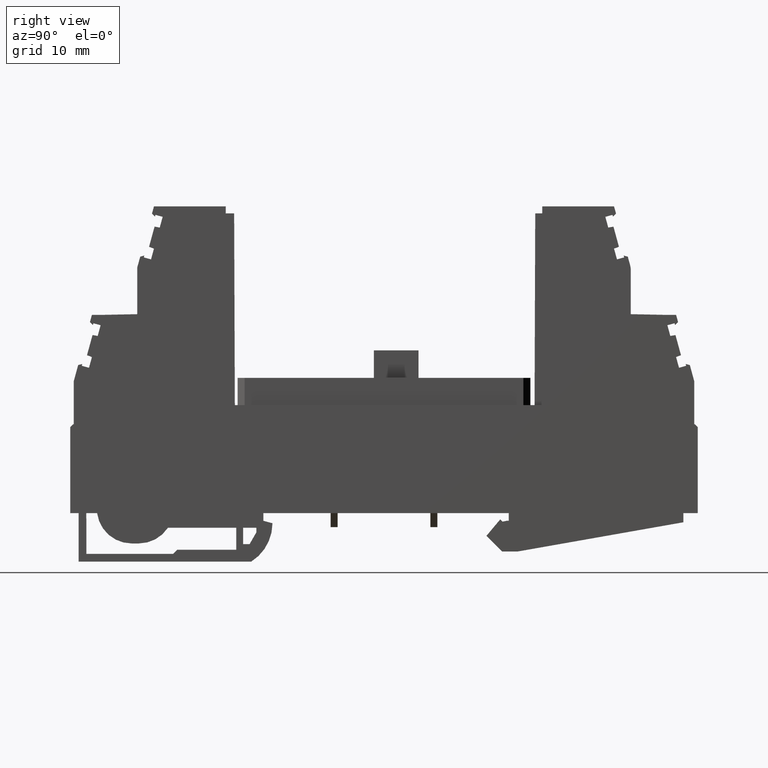
[diagram: clean part render]
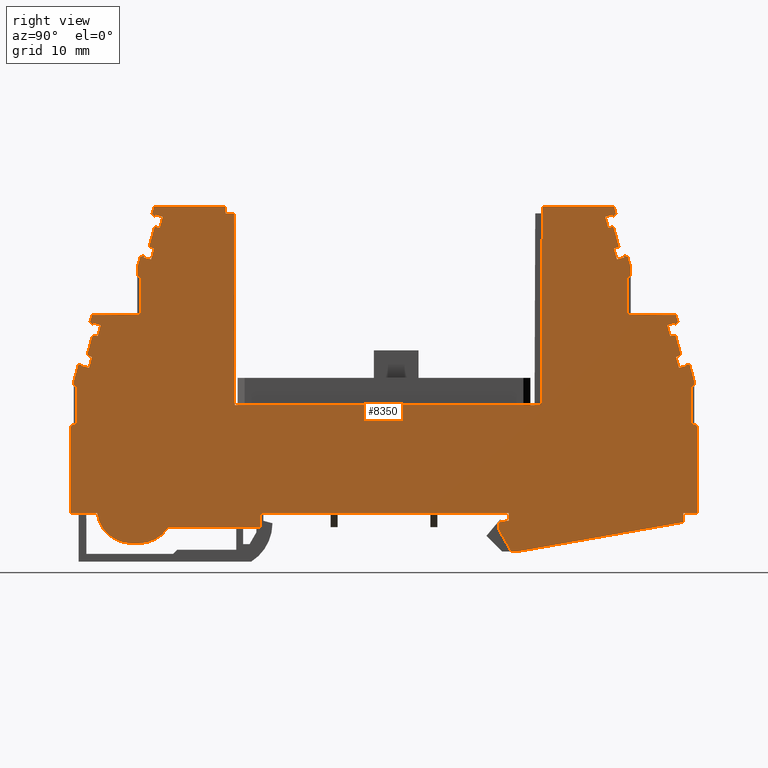
[diagram: same view with one face highlighted and labeled with its STEP entity id]
A machine part, right view. The second image highlights one B-rep face of the part: STEP entity #8350.
In plain terms, the highlighted planar face has unit normal (1, -0, 0).
Its self-contained STEP definition (entity closure, byte-faithful):
#10=CARTESIAN_POINT('',(27.1450273233744,19.4111263361234,-37.3));
#20=DIRECTION('',(0.,0.,1.));
#30=DIRECTION('',(1.,0.,0.));
#40=AXIS2_PLACEMENT_3D('',#10,#20,#30);
#50=PLANE('',#40);
#60=CARTESIAN_POINT('',(8.90000005327397,45.5062694963291,-37.3));
#70=DIRECTION('',(-1.,1.20996962818096E-16,0.));
#80=VECTOR('',#70,1.);
#90=LINE('',#60,#80);
#100=CARTESIAN_POINT('',(29.3413513802325,45.5062694963291,-37.3));
#110=VERTEX_POINT('',#100);
#120=CARTESIAN_POINT('',(27.4413525222674,45.5062694963291,-37.3));
#130=VERTEX_POINT('',#120);
#140=EDGE_CURVE('',#110,#130,#90,.T.);
#150=ORIENTED_EDGE('',*,*,#140,.T.);
#160=CARTESIAN_POINT('',(8.90000005327397,45.1025581276091,-37.3));
#170=DIRECTION('',(-0.999805030924262,-0.0197458891553457,0.));
#180=VECTOR('',#170,1.);
#190=LINE('',#160,#180);
#200=CARTESIAN_POINT('',(34.4047084436594,45.606269480562,-37.3));
#210=VERTEX_POINT('',#200);
#220=EDGE_CURVE('',#210,#110,#190,.T.);
#230=ORIENTED_EDGE('',*,*,#220,.T.);
#240=CARTESIAN_POINT('',(34.4047084436594,-19.6999999999998,-37.3));
#250=DIRECTION('',(-1.20996962449382E-16,-1.,0.));
#260=VECTOR('',#250,1.);
#270=LINE('',#240,#260);
#280=CARTESIAN_POINT('',(34.4047084436594,50.706269480562,-37.3));
#290=VERTEX_POINT('',#280);
#300=EDGE_CURVE('',#290,#210,#270,.T.);
#310=ORIENTED_EDGE('',*,*,#300,.T.);
#320=CARTESIAN_POINT('',(8.90000005327397,72.723846158986,-37.3));
#330=DIRECTION('',(0.756958310160381,-0.653463171631838,0.));
#340=VECTOR('',#330,1.);
#350=LINE('',#320,#340);
#360=CARTESIAN_POINT('',(33.9413513671893,51.106274052444,-37.3));
#370=VERTEX_POINT('',#360);
#380=EDGE_CURVE('',#370,#290,#350,.T.);
#390=ORIENTED_EDGE('',*,*,#380,.T.);
#400=CARTESIAN_POINT('',(33.9413513671894,-19.6999999999998,-37.3));
#410=DIRECTION('',(-1.20996962449382E-16,-1.,0.));
#420=VECTOR('',#410,1.);
#430=LINE('',#400,#420);
#440=CARTESIAN_POINT('',(33.9413513671894,52.2833516012792,-37.3));
#450=VERTEX_POINT('',#440);
#460=EDGE_CURVE('',#450,#370,#430,.T.);
#470=ORIENTED_EDGE('',*,*,#460,.T.);
#480=CARTESIAN_POINT('',(14.2489347517698,-19.6999999999998,-37.3));
#490=DIRECTION('',(-0.263873049965441,-0.964557418457779,0.));
#500=VECTOR('',#490,1.);
#510=LINE('',#480,#500);
#520=CARTESIAN_POINT('',(34.369941174828,53.8500120786842,-37.3));
#530=VERTEX_POINT('',#520);
#540=EDGE_CURVE('',#530,#450,#510,.T.);
#550=ORIENTED_EDGE('',*,*,#540,.T.);
#560=CARTESIAN_POINT('',(8.90000005327397,47.1680981110385,-37.3));
#570=DIRECTION('',(-0.967267752775637,-0.25375794458572,0.));
#580=VECTOR('',#570,1.);
#590=LINE('',#560,#580);
#600=CARTESIAN_POINT('',(34.9619006101164,54.0053097293563,-37.3));
#610=VERTEX_POINT('',#600);
#620=EDGE_CURVE('',#610,#530,#590,.T.);
#630=ORIENTED_EDGE('',*,*,#620,.T.);
#640=CARTESIAN_POINT('',(14.7984095577835,-19.6999999999998,-37.3));
#650=DIRECTION('',(0.263873049960418,0.964557418459154,0.));
#660=VECTOR('',#650,1.);
#670=LINE('',#640,#660);
#680=CARTESIAN_POINT('',(34.8900459676001,53.7426533932878,-37.3));
#690=VERTEX_POINT('',#680);
#700=EDGE_CURVE('',#690,#610,#670,.T.);
#710=ORIENTED_EDGE('',*,*,#700,.T.);
#720=CARTESIAN_POINT('',(8.90000005327397,60.852725383736,-37.3));
#730=DIRECTION('',(-0.964557418457773,0.263873049965463,0.));
#740=VECTOR('',#730,1.);
#750=LINE('',#720,#740);
#760=CARTESIAN_POINT('',(35.92212240535,53.4603092298248,-37.3));
#770=VERTEX_POINT('',#760);
#780=EDGE_CURVE('',#770,#690,#750,.T.);
#790=ORIENTED_EDGE('',*,*,#780,.T.);
#800=CARTESIAN_POINT('',(15.9077266177557,-19.6999999999998,-37.3));
#810=DIRECTION('',(-0.263873049965258,-0.96455741845783,0.));
#820=VECTOR('',#810,1.);
#830=LINE('',#800,#820);
#840=CARTESIAN_POINT('',(36.3434969255558,55.0005950584349,-37.3));
#850=VERTEX_POINT('',#840);
#860=EDGE_CURVE('',#850,#770,#830,.T.);
#870=ORIENTED_EDGE('',*,*,#860,.T.);
#880=CARTESIAN_POINT('',(8.90000005327397,65.1522528053902,-37.3));
#890=DIRECTION('',(0.937888934611864,-0.346935651573346,0.));
#900=VECTOR('',#890,1.);
#910=LINE('',#880,#900);
#920=CARTESIAN_POINT('',(35.6373932870742,55.2617907254851,-37.3));
#930=VERTEX_POINT('',#920);
#940=EDGE_CURVE('',#930,#850,#910,.T.);
#950=ORIENTED_EDGE('',*,*,#940,.T.);
#960=CARTESIAN_POINT('',(15.1301679305708,-19.6999999999998,-37.3));
#970=DIRECTION('',(-0.263873049965391,-0.964557418457793,0.));
#980=VECTOR('',#970,1.);
#990=LINE('',#960,#980);
#1000=CARTESIAN_POINT('',(36.4290124369704,58.1554629808585,-37.3));
#1010=VERTEX_POINT('',#1000);
#1020=EDGE_CURVE('',#1010,#930,#990,.T.);
#1030=ORIENTED_EDGE('',*,*,#1020,.T.);
#1040=CARTESIAN_POINT('',(8.90000005327397,63.1583324263755,-37.3));
#1050=DIRECTION('',(-0.983885037933486,0.178802215116658,0.));
#1060=VECTOR('',#1050,1.);
#1070=LINE('',#1040,#1060);
#1080=CARTESIAN_POINT('',(37.1697449261754,58.0208490729603,-37.3));
#1090=VERTEX_POINT('',#1080);
#1100=EDGE_CURVE('',#1090,#1010,#1070,.T.);
#1110=ORIENTED_EDGE('',*,*,#1100,.T.);
#1120=CARTESIAN_POINT('',(15.9077266177532,-19.6999999999998,-37.3));
#1130=DIRECTION('',(-0.263873049965295,-0.964557418457819,0.));
#1140=VECTOR('',#1130,1.);
#1150=LINE('',#1120,#1140);
#1160=CARTESIAN_POINT('',(37.591119446381,59.5611349015705,-37.3));
#1170=VERTEX_POINT('',#1160);
#1180=EDGE_CURVE('',#1170,#1090,#1150,.T.);
#1190=ORIENTED_EDGE('',*,*,#1180,.T.);
#1200=CARTESIAN_POINT('',(8.90000005327397,67.4101369788993,-37.3));
#1210=DIRECTION('',(0.964557418457813,-0.26387304996532,0.));
#1220=VECTOR('',#1210,1.);
#1230=LINE('',#1200,#1220);
#1240=CARTESIAN_POINT('',(36.5590430086313,59.8434790650334,-37.3));
#1250=VERTEX_POINT('',#1240);
#1260=EDGE_CURVE('',#1250,#1170,#1230,.T.);
#1270=ORIENTED_EDGE('',*,*,#1260,.T.);
#1280=CARTESIAN_POINT('',(14.7984095569449,-19.6999999999998,-37.3));
#1290=DIRECTION('',(0.263873049970261,0.964557418456461,0.));
#1300=VECTOR('',#1290,1.);
#1310=LINE('',#1280,#1300);
#1320=CARTESIAN_POINT('',(36.4871883661123,59.5808227289657,-37.3));
#1330=VERTEX_POINT('',#1320);
#1340=EDGE_CURVE('',#1330,#1250,#1310,.T.);
#1350=ORIENTED_EDGE('',*,*,#1340,.T.);
#1360=CARTESIAN_POINT('',(114.942101167503,-19.6999999999998,-37.3));
#1370=DIRECTION('',(0.703394702810296,-0.710799473873198,0.));
#1380=VECTOR('',#1370,1.);
#1390=LINE('',#1360,#1380);
#1400=CARTESIAN_POINT('',(36.0567169378386,60.0158258125999,-37.3));
#1410=VERTEX_POINT('',#1400);
#1420=EDGE_CURVE('',#1410,#1330,#1390,.T.);
#1430=ORIENTED_EDGE('',*,*,#1420,.T.);
#1440=CARTESIAN_POINT('',(14.2489347517765,-19.6999999999998,-37.3));
#1450=DIRECTION('',(-0.26387304996536,-0.964557418457802,0.));
#1460=VECTOR('',#1450,1.);
#1470=LINE('',#1440,#1460);
#1480=CARTESIAN_POINT('',(36.3413513671893,61.056274052444,-37.3));
#1490=VERTEX_POINT('',#1480);
#1500=EDGE_CURVE('',#1490,#1410,#1470,.T.);
#1510=ORIENTED_EDGE('',*,*,#1500,.T.);
#1520=CARTESIAN_POINT('',(8.90000005327397,61.056274052444,-37.3));
#1530=DIRECTION('',(-1.,1.20996962449382E-16,0.));
#1540=VECTOR('',#1530,1.);
#1550=LINE('',#1520,#1540);
#1560=CARTESIAN_POINT('',(46.6418672217727,61.056274052444,-37.3));
#1570=VERTEX_POINT('',#1560);
#1580=EDGE_CURVE('',#1570,#1490,#1550,.T.);
#1590=ORIENTED_EDGE('',*,*,#1580,.T.);
#1600=CARTESIAN_POINT('',(46.923760941475,-19.6999999999998,-37.3));
#1610=DIRECTION('',(-0.00349065141522361,0.99999390765779,0.));
#1620=VECTOR('',#1610,1.);
#1630=LINE('',#1600,#1620);
#1640=CARTESIAN_POINT('',(46.6453578944543,60.056274052444,-37.3));
#1650=VERTEX_POINT('',#1640);
#1660=EDGE_CURVE('',#1650,#1570,#1630,.T.);
#1670=ORIENTED_EDGE('',*,*,#1660,.T.);
#1680=CARTESIAN_POINT('',(8.90000005327397,60.056274052444,-37.3));
#1690=DIRECTION('',(-1.,1.20996962449382E-16,0.));
#1700=VECTOR('',#1690,1.);
#1710=LINE('',#1680,#1700);
#1720=CARTESIAN_POINT('',(47.8453578938458,60.056274052444,-37.3));
#1730=VERTEX_POINT('',#1720);
#1740=EDGE_CURVE('',#1730,#1650,#1710,.T.);
#1750=ORIENTED_EDGE('',*,*,#1740,.T.);
#1760=CARTESIAN_POINT('',(48.1237609408666,-19.6999999999998,-37.3));
#1770=DIRECTION('',(-0.00349065141522361,0.99999390765779,0.));
#1780=VECTOR('',#1770,1.);
#1790=LINE('',#1760,#1780);
#1800=CARTESIAN_POINT('',(47.9413513925897,32.556274052444,-37.3));
#1810=VERTEX_POINT('',#1800);
#1820=EDGE_CURVE('',#1810,#1730,#1790,.T.);
#1830=ORIENTED_EDGE('',*,*,#1820,.T.);
#1840=CARTESIAN_POINT('',(8.90000005327397,32.556274052444,-37.3));
#1850=DIRECTION('',(-1.,1.20996962449382E-16,0.));
#1860=VECTOR('',#1850,1.);
#1870=LINE('',#1840,#1860);
#1880=CARTESIAN_POINT('',(91.9413513701809,32.556274052444,-37.3));
#1890=VERTEX_POINT('',#1880);
#1900=EDGE_CURVE('',#1890,#1810,#1870,.T.);
#1910=ORIENTED_EDGE('',*,*,#1900,.T.);
#1920=CARTESIAN_POINT('',(91.758941821904,-19.6999999999998,-37.3));
#1930=DIRECTION('',(-0.00349065141522385,-0.99999390765779,0.));
#1940=VECTOR('',#1930,1.);
#1950=LINE('',#1920,#1940);
#1960=CARTESIAN_POINT('',(92.0408355416064,61.056274052444,-37.3));
#1970=VERTEX_POINT('',#1960);
#1980=EDGE_CURVE('',#1970,#1890,#1950,.T.);
#1990=ORIENTED_EDGE('',*,*,#1980,.T.);
#2000=CARTESIAN_POINT('',(8.90000005327397,61.056274052444,-37.3));
#2010=DIRECTION('',(-1.,1.20996962449382E-16,0.));
#2020=VECTOR('',#2010,1.);
#2030=LINE('',#2000,#2020);
#2040=CARTESIAN_POINT('',(102.341351367189,61.056274052444,-37.3));
#2050=VERTEX_POINT('',#2040);
#2060=EDGE_CURVE('',#2050,#1970,#2030,.T.);
#2070=ORIENTED_EDGE('',*,*,#2060,.T.);
#2080=CARTESIAN_POINT('',(124.433767982602,-19.6999999999998,-37.3));
#2090=DIRECTION('',(-0.26387304996536,0.964557418457802,0.));
#2100=VECTOR('',#2090,1.);
#2110=LINE('',#2080,#2100);
#2120=CARTESIAN_POINT('',(102.62598579654,60.0158258125998,-37.3));
#2130=VERTEX_POINT('',#2120);
#2140=EDGE_CURVE('',#2130,#2050,#2110,.T.);
#2150=ORIENTED_EDGE('',*,*,#2140,.T.);
#2160=CARTESIAN_POINT('',(23.7406015668753,-19.6999999999998,-37.3));
#2170=DIRECTION('',(0.703394702810296,0.710799473873198,0.));
#2180=VECTOR('',#2170,1.);
#2190=LINE('',#2160,#2180);
#2200=CARTESIAN_POINT('',(102.195514368266,59.5808227289656,-37.3));
#2210=VERTEX_POINT('',#2200);
#2220=EDGE_CURVE('',#2210,#2130,#2190,.T.);
#2230=ORIENTED_EDGE('',*,*,#2220,.T.);
#2240=CARTESIAN_POINT('',(123.884293177434,-19.6999999999998,-37.3));
#2250=DIRECTION('',(0.26387304997026,-0.964557418456461,0.));
#2260=VECTOR('',#2250,1.);
#2270=LINE('',#2240,#2260);
#2280=CARTESIAN_POINT('',(102.123659725747,59.8434790650333,-37.3));
#2290=VERTEX_POINT('',#2280);
#2300=EDGE_CURVE('',#2290,#2210,#2270,.T.);
#2310=ORIENTED_EDGE('',*,*,#2300,.T.);
#2320=CARTESIAN_POINT('',(8.90000005327397,34.3403716958161,-37.3));
#2330=DIRECTION('',(0.964557418457813,0.26387304996532,0.));
#2340=VECTOR('',#2330,1.);
#2350=LINE('',#2320,#2340);
#2360=CARTESIAN_POINT('',(101.091583287998,59.5611349015705,-37.3));
#2370=VERTEX_POINT('',#2360);
#2380=EDGE_CURVE('',#2370,#2290,#2350,.T.);
#2390=ORIENTED_EDGE('',*,*,#2380,.T.);
#2400=CARTESIAN_POINT('',(122.774976116626,-19.6999999999998,-37.3));
#2410=DIRECTION('',(-0.263873049965295,0.964557418457819,0.));
#2420=VECTOR('',#2410,1.);
#2430=LINE('',#2400,#2420);
#2440=CARTESIAN_POINT('',(101.512957808204,58.0208490729604,-37.3));
#2450=VERTEX_POINT('',#2440);
#2460=EDGE_CURVE('',#2450,#2370,#2430,.T.);
#2470=ORIENTED_EDGE('',*,*,#2460,.T.);
#2480=CARTESIAN_POINT('',(8.90000005327397,41.1902221636747,-37.3));
#2490=DIRECTION('',(-0.983885037933486,-0.178802215116658,0.));
#2500=VECTOR('',#2490,1.);
#2510=LINE('',#2480,#2500);
#2520=CARTESIAN_POINT('',(102.253690297408,58.1554629808584,-37.3));
#2530=VERTEX_POINT('',#2520);
#2540=EDGE_CURVE('',#2530,#2450,#2510,.T.);
#2550=ORIENTED_EDGE('',*,*,#2540,.T.);
#2560=CARTESIAN_POINT('',(123.552534803808,-19.6999999999998,-37.3));
#2570=DIRECTION('',(-0.263873049965391,0.964557418457793,0.));
#2580=VECTOR('',#2570,1.);
#2590=LINE('',#2560,#2580);
#2600=CARTESIAN_POINT('',(103.045309447305,55.2617907254851,-37.3));
#2610=VERTEX_POINT('',#2600);
#2620=EDGE_CURVE('',#2610,#2530,#2590,.T.);
#2630=ORIENTED_EDGE('',*,*,#2620,.T.);
#2640=CARTESIAN_POINT('',(8.90000005327397,20.4363833112167,-37.3));
#2650=DIRECTION('',(0.937888934611864,0.346935651573346,0.));
#2660=VECTOR('',#2650,1.);
#2670=LINE('',#2640,#2660);
#2680=CARTESIAN_POINT('',(102.339205808823,55.0005950584348,-37.3));
#2690=VERTEX_POINT('',#2680);
#2700=EDGE_CURVE('',#2690,#2610,#2670,.T.);
#2710=ORIENTED_EDGE('',*,*,#2700,.T.);
#2720=CARTESIAN_POINT('',(122.774976116623,-19.6999999999998,-37.3));
#2730=DIRECTION('',(-0.263873049965258,0.96455741845783,0.));
#2740=VECTOR('',#2730,1.);
#2750=LINE('',#2720,#2740);
#2760=CARTESIAN_POINT('',(102.760580329029,53.4603092298247,-37.3));
#2770=VERTEX_POINT('',#2760);
#2780=EDGE_CURVE('',#2770,#2690,#2750,.T.);
#2790=ORIENTED_EDGE('',*,*,#2780,.T.);
#2800=CARTESIAN_POINT('',(8.90000005327397,27.7829601006336,-37.3));
#2810=DIRECTION('',(-0.964557418457773,-0.263873049965463,0.));
#2820=VECTOR('',#2810,1.);
#2830=LINE('',#2800,#2820);
#2840=CARTESIAN_POINT('',(103.792656766779,53.7426533932878,-37.3));
#2850=VERTEX_POINT('',#2840);
#2860=EDGE_CURVE('',#2850,#2770,#2830,.T.);
#2870=ORIENTED_EDGE('',*,*,#2860,.T.);
#2880=CARTESIAN_POINT('',(123.884293176595,-19.6999999999998,-37.3));
#2890=DIRECTION('',(0.263873049960418,-0.964557418459154,0.));
#2900=VECTOR('',#2890,1.);
#2910=LINE('',#2880,#2900);
#2920=CARTESIAN_POINT('',(103.720802124262,54.0053097293563,-37.3));
#2930=VERTEX_POINT('',#2920);
#2940=EDGE_CURVE('',#2930,#2850,#2910,.T.);
#2950=ORIENTED_EDGE('',*,*,#2940,.T.);
#2960=CARTESIAN_POINT('',(8.90000005327397,78.8810814776209,-37.3));
#2970=DIRECTION('',(-0.967267752775637,0.25375794458572,0.));
#2980=VECTOR('',#2970,1.);
#2990=LINE('',#2960,#2980);
#3000=CARTESIAN_POINT('',(104.312761559551,53.8500120786844,-37.3));
#3010=VERTEX_POINT('',#3000);
#3020=EDGE_CURVE('',#3010,#2930,#2990,.T.);
#3030=ORIENTED_EDGE('',*,*,#3020,.T.);
#3040=CARTESIAN_POINT('',(124.433767982609,-19.6999999999998,-37.3));
#3050=DIRECTION('',(-0.263873049965441,0.964557418457779,0.));
#3060=VECTOR('',#3050,1.);
#3070=LINE('',#3040,#3060);
#3080=CARTESIAN_POINT('',(104.635023622563,52.6720203754523,-37.3));
#3090=VERTEX_POINT('',#3080);
#3100=EDGE_CURVE('',#3090,#3010,#3070,.T.);
#3110=ORIENTED_EDGE('',*,*,#3100,.T.);
#3120=CARTESIAN_POINT('',(101.741351367189,51.880401225556,-37.3));
#3130=DIRECTION('',(8.99708997865547E-21,-2.60974393670053E-32,1.));
#3140=DIRECTION('',(1.,-1.20996962449382E-16,-8.99708997865547E-21));
#3150=AXIS2_PLACEMENT_3D('',#3120,#3130,#3140);
#3160=CIRCLE('',#3150,3.);
#3170=CARTESIAN_POINT('',(104.741351367189,51.880401225556,-37.3));
#3180=VERTEX_POINT('',#3170);
#3190=EDGE_CURVE('',#3180,#3090,#3160,.T.);
#3200=ORIENTED_EDGE('',*,*,#3190,.T.);
#3210=CARTESIAN_POINT('',(104.741351367189,-19.6999999999998,-37.3));
#3220=DIRECTION('',(1.20996962449382E-16,1.,0.));
#3230=VECTOR('',#3220,1.);
#3240=LINE('',#3210,#3230);
#3250=CARTESIAN_POINT('',(104.741351367189,51.1062694943388,-37.3));
#3260=VERTEX_POINT('',#3250);
#3270=EDGE_CURVE('',#3260,#3180,#3240,.T.);
#3280=ORIENTED_EDGE('',*,*,#3270,.T.);
#3290=CARTESIAN_POINT('',(8.90000005327397,-31.6302280177433,-37.3));
#3300=DIRECTION('',(0.756961995471646,0.65345890261866,0.));
#3310=VECTOR('',#3300,1.);
#3320=LINE('',#3290,#3310);
#3330=CARTESIAN_POINT('',(104.730509466521,51.0969100594458,-37.3));
#3340=VERTEX_POINT('',#3330);
#3350=EDGE_CURVE('',#3340,#3260,#3320,.T.);
#3360=ORIENTED_EDGE('',*,*,#3350,.T.);
#3370=CARTESIAN_POINT('',(129.782702681105,51.0969100594458,-37.3));
#3380=DIRECTION('',(-1.,-2.46519032881566E-32,1.79941799573109E-20));
#3390=VECTOR('',#3380,1.);
#3400=LINE('',#3370,#3390);
#3410=CARTESIAN_POINT('',(104.741351367189,51.0969100594458,-37.3));
#3420=VERTEX_POINT('',#3410);
#3430=EDGE_CURVE('',#3420,#3340,#3400,.T.);
#3440=ORIENTED_EDGE('',*,*,#3430,.T.);
#3450=CARTESIAN_POINT('',(129.782702681105,72.7144821659879,-37.3));
#3460=DIRECTION('',(0.756958310160381,0.653463171631838,
-8.32735372689133E-17));
#3470=VECTOR('',#3460,1.);
#3480=LINE('',#3450,#3470);
#3490=CARTESIAN_POINT('',(104.277994290719,50.6969054875638,-37.3));
#3500=VERTEX_POINT('',#3490);
#3510=EDGE_CURVE('',#3500,#3420,#3480,.T.);
#3520=ORIENTED_EDGE('',*,*,#3510,.T.);
#3530=CARTESIAN_POINT('',(104.277994290719,-19.709363992998,-37.3));
#3540=DIRECTION('',(-2.46519032881566E-32,1.,1.44553607884872E-33));
#3550=VECTOR('',#3540,1.);
#3560=LINE('',#3530,#3550);
#3570=CARTESIAN_POINT('',(104.277994290719,45.6062694805044,-37.3));
#3580=VERTEX_POINT('',#3570);
#3590=EDGE_CURVE('',#3580,#3500,#3560,.T.);
#3600=ORIENTED_EDGE('',*,*,#3590,.T.);
#3610=CARTESIAN_POINT('',(8.90000005327397,47.4899600439844,-37.3));
#3620=DIRECTION('',(-0.999805030924262,0.019745889155346,0.));
#3630=VECTOR('',#3620,1.);
#3640=LINE('',#3610,#3630);
#3650=CARTESIAN_POINT('',(109.341351750402,45.5062694884456,-37.3));
#3660=VERTEX_POINT('',#3650);
#3670=EDGE_CURVE('',#3660,#3580,#3640,.T.);
#3680=ORIENTED_EDGE('',*,*,#3670,.T.);
#3690=CARTESIAN_POINT('',(8.90000005327397,45.5062694884456,-37.3));
#3700=DIRECTION('',(-1.,1.18859577327523E-16,0.));
#3710=VECTOR('',#3700,1.);
#3720=LINE('',#3690,#3710);
#3730=CARTESIAN_POINT('',(111.241350152269,45.5062694884457,-37.3));
#3740=VERTEX_POINT('',#3730);
#3750=EDGE_CURVE('',#3740,#3660,#3720,.T.);
#3760=ORIENTED_EDGE('',*,*,#3750,.T.);
#3770=CARTESIAN_POINT('',(129.079963349151,-19.6999999999998,-37.3));
#3780=DIRECTION('',(-0.263875753589783,0.964556678825783,0.));
#3790=VECTOR('',#3780,1.);
#3800=LINE('',#3770,#3790);
#3810=CARTESIAN_POINT('',(111.525986322298,44.4658263438923,-37.3));
#3820=VERTEX_POINT('',#3810);
#3830=EDGE_CURVE('',#3820,#3740,#3800,.T.);
#3840=ORIENTED_EDGE('',*,*,#3830,.T.);
#3850=CARTESIAN_POINT('',(48.0286090580729,-19.6999999999998,-37.3));
#3860=DIRECTION('',(0.703394702810296,0.710799473873198,0.));
#3870=VECTOR('',#3860,1.);
#3880=LINE('',#3850,#3870);
#3890=CARTESIAN_POINT('',(111.095514368266,44.0308227289657,-37.3));
#3900=VERTEX_POINT('',#3890);
#3910=EDGE_CURVE('',#3900,#3820,#3880,.T.);
#3920=ORIENTED_EDGE('',*,*,#3910,.T.);
#3930=CARTESIAN_POINT('',(128.53029455742,-19.6999999999998,-37.3));
#3940=DIRECTION('',(0.26387304997026,-0.964557418456461,0.));
#3950=VECTOR('',#3940,1.);
#3960=LINE('',#3930,#3950);
#3970=CARTESIAN_POINT('',(111.023659725747,44.2934790650334,-37.3));
#3980=VERTEX_POINT('',#3970);
#3990=EDGE_CURVE('',#3980,#3900,#3960,.T.);
#4000=ORIENTED_EDGE('',*,*,#3990,.T.);
#4010=CARTESIAN_POINT('',(8.90000005327397,16.3556072123847,-37.3));
#4020=DIRECTION('',(0.964557418457813,0.26387304996532,0.));
#4030=VECTOR('',#4020,1.);
#4040=LINE('',#4010,#4030);
#4050=CARTESIAN_POINT('',(109.991583287998,44.0111349015705,-37.3));
#4060=VERTEX_POINT('',#4050);
#4070=EDGE_CURVE('',#4060,#3980,#4040,.T.);
#4080=ORIENTED_EDGE('',*,*,#4070,.T.);
#4090=CARTESIAN_POINT('',(127.420977496698,-19.6999999999998,-37.3));
#4100=DIRECTION('',(-0.263873049965295,0.964557418457819,0.));
#4110=VECTOR('',#4100,1.);
#4120=LINE('',#4090,#4110);
#4130=CARTESIAN_POINT('',(110.412957808204,42.4708490729604,-37.3));
#4140=VERTEX_POINT('',#4130);
#4150=EDGE_CURVE('',#4140,#4060,#4120,.T.);
#4160=ORIENTED_EDGE('',*,*,#4150,.T.);
#4170=CARTESIAN_POINT('',(8.90000005327397,24.022818043087,-37.3));
#4180=DIRECTION('',(-0.983885037933486,-0.178802215116658,0.));
#4190=VECTOR('',#4180,1.);
#4200=LINE('',#4170,#4190);
#4210=CARTESIAN_POINT('',(111.153690297408,42.6054629808585,-37.3));
#4220=VERTEX_POINT('',#4210);
#4230=EDGE_CURVE('',#4220,#4140,#4200,.T.);
#4240=ORIENTED_EDGE('',*,*,#4230,.T.);
#4250=CARTESIAN_POINT('',(128.198536183879,-19.6999999999998,-37.3));
#4260=DIRECTION('',(-0.263873049965391,0.964557418457793,0.));
#4270=VECTOR('',#4260,1.);
#4280=LINE('',#4250,#4270);
#4290=CARTESIAN_POINT('',(111.945309447305,39.7117907254848,-37.3));
#4300=VERTEX_POINT('',#4290);
#4310=EDGE_CURVE('',#4300,#4220,#4280,.T.);
#4320=ORIENTED_EDGE('',*,*,#4310,.T.);
#4330=CARTESIAN_POINT('',(8.90000005327397,1.59417334364645,-37.3));
#4340=DIRECTION('',(0.937888934611864,0.346935651573346,0.));
#4350=VECTOR('',#4340,1.);
#4360=LINE('',#4330,#4350);
#4370=CARTESIAN_POINT('',(111.239205808823,39.4505950584346,-37.3));
#4380=VERTEX_POINT('',#4370);
#4390=EDGE_CURVE('',#4380,#4300,#4360,.T.);
#4400=ORIENTED_EDGE('',*,*,#4390,.T.);
#4410=CARTESIAN_POINT('',(127.420977496696,-19.6999999999998,-37.3));
#4420=DIRECTION('',(-0.263873049965258,0.96455741845783,0.));
#4430=VECTOR('',#4420,1.);
#4440=LINE('',#4410,#4430);
#4450=CARTESIAN_POINT('',(111.660580329029,37.9103092298248,-37.3));
#4460=VERTEX_POINT('',#4450);
#4470=EDGE_CURVE('',#4460,#4380,#4440,.T.);
#4480=ORIENTED_EDGE('',*,*,#4470,.T.);
#4490=CARTESIAN_POINT('',(8.90000005327397,9.79819561720079,-37.3));
#4500=DIRECTION('',(-0.964557418457773,-0.263873049965463,0.));
#4510=VECTOR('',#4500,1.);
#4520=LINE('',#4490,#4510);
#4530=CARTESIAN_POINT('',(112.692656766779,38.1926533932878,-37.3));
#4540=VERTEX_POINT('',#4530);
#4550=EDGE_CURVE('',#4540,#4460,#4520,.T.);
#4560=ORIENTED_EDGE('',*,*,#4550,.T.);
#4570=CARTESIAN_POINT('',(128.530294556752,-19.6999999999998,-37.3));
#4580=DIRECTION('',(0.263873049960418,-0.964557418459154,0.));
#4590=VECTOR('',#4580,1.);
#4600=LINE('',#4570,#4590);
#4610=CARTESIAN_POINT('',(112.620802124262,38.4553097293565,-37.3));
#4620=VERTEX_POINT('',#4610);
#4630=EDGE_CURVE('',#4620,#4540,#4600,.T.);
#4640=ORIENTED_EDGE('',*,*,#4630,.T.);
#4650=CARTESIAN_POINT('',(8.90000005327397,65.6659527687728,-37.3));
#4660=DIRECTION('',(-0.967267752775637,0.25375794458572,0.));
#4670=VECTOR('',#4660,1.);
#4680=LINE('',#4650,#4670);
#4690=CARTESIAN_POINT('',(113.212761559551,38.3000120786844,-37.3));
#4700=VERTEX_POINT('',#4690);
#4710=EDGE_CURVE('',#4700,#4620,#4680,.T.);
#4720=ORIENTED_EDGE('',*,*,#4710,.T.);
#4730=CARTESIAN_POINT('',(129.079769362679,-19.6999999999998,-37.3));
#4740=DIRECTION('',(-0.263873049965441,0.964557418457779,0.));
#4750=VECTOR('',#4740,1.);
#4760=LINE('',#4730,#4750);
#4770=CARTESIAN_POINT('',(113.841351367189,36.0022747303483,-37.3));
#4780=VERTEX_POINT('',#4770);
#4790=EDGE_CURVE('',#4780,#4700,#4760,.T.);
#4800=ORIENTED_EDGE('',*,*,#4790,.T.);
#4810=CARTESIAN_POINT('',(113.841351367189,-19.6999999999998,-37.3));
#4820=DIRECTION('',(1.20996962449382E-16,1.,0.));
#4830=VECTOR('',#4820,1.);
#4840=LINE('',#4810,#4830);
#4850=CARTESIAN_POINT('',(113.84135135123,35.406274068403,-37.3));
#4860=VERTEX_POINT('',#4850);
#4870=EDGE_CURVE('',#4860,#4780,#4840,.T.);
#4880=ORIENTED_EDGE('',*,*,#4870,.T.);
#4890=CARTESIAN_POINT('',(129.782702649187,51.3476253663592,-37.3));
#4900=DIRECTION('',(0.707106781186552,0.707106781186543,
-5.55175131345927E-17));
#4910=VECTOR('',#4900,1.);
#4920=LINE('',#4890,#4910);
#4930=CARTESIAN_POINT('',(113.441351351231,35.0062740684038,-37.3));
#4940=VERTEX_POINT('',#4930);
#4950=EDGE_CURVE('',#4940,#4860,#4920,.T.);
#4960=ORIENTED_EDGE('',*,*,#4950,.T.);
#4970=CARTESIAN_POINT('',(113.441351351231,-19.6999999999998,-37.3));
#4980=DIRECTION('',(-2.46519032881566E-32,1.,1.44553607884872E-33));
#4990=VECTOR('',#4980,1.);
#5000=LINE('',#4970,#4990);
#5010=CARTESIAN_POINT('',(113.441351351231,29.806274052444,-37.3));
#5020=VERTEX_POINT('',#5010);
#5030=EDGE_CURVE('',#5020,#4940,#5000,.T.);
#5040=ORIENTED_EDGE('',*,*,#5030,.T.);
#5050=CARTESIAN_POINT('',(8.90000005327397,29.806274052444,-37.3));
#5060=DIRECTION('',(-1.,1.20996962449382E-16,0.));
#5070=VECTOR('',#5060,1.);
#5080=LINE('',#5050,#5070);
#5090=CARTESIAN_POINT('',(113.94135136719,29.806274052444,-37.3));
#5100=VERTEX_POINT('',#5090);
#5110=EDGE_CURVE('',#5100,#5020,#5080,.T.);
#5120=ORIENTED_EDGE('',*,*,#5110,.T.);
#5130=CARTESIAN_POINT('',(8.90000005327397,134.847625366359,-37.3));
#5140=DIRECTION('',(-0.707106781186552,0.707106781186543,0.));
#5150=VECTOR('',#5140,1.);
#5160=LINE('',#5130,#5150);
#5170=CARTESIAN_POINT('',(114.341351313916,29.406274105718,-37.3));
#5180=VERTEX_POINT('',#5170);
#5190=EDGE_CURVE('',#5180,#5100,#5160,.T.);
#5200=ORIENTED_EDGE('',*,*,#5190,.T.);
#5210=CARTESIAN_POINT('',(114.341351313916,-19.6999999999998,-37.3));
#5220=DIRECTION('',(1.20996962449382E-16,1.,0.));
#5230=VECTOR('',#5220,1.);
#5240=LINE('',#5210,#5230);
#5250=CARTESIAN_POINT('',(114.341351313916,17.0562740524431,-37.3));
#5260=VERTEX_POINT('',#5250);
#5270=EDGE_CURVE('',#5260,#5180,#5240,.T.);
#5280=ORIENTED_EDGE('',*,*,#5270,.T.);
#5290=CARTESIAN_POINT('',(8.90000005327397,17.0562740524431,-37.3));
#5300=DIRECTION('',(1.,-1.20996962449382E-16,0.));
#5310=VECTOR('',#5300,1.);
#5320=LINE('',#5290,#5310);
#5330=CARTESIAN_POINT('',(112.291351367189,17.0562740524431,-37.3));
#5340=VERTEX_POINT('',#5330);
#5350=EDGE_CURVE('',#5340,#5260,#5320,.T.);
#5360=ORIENTED_EDGE('',*,*,#5350,.T.);
#5370=CARTESIAN_POINT('',(112.291351367189,-19.6999999999998,-37.3));
#5380=DIRECTION('',(2.41993924898765E-16,1.,0.));
#5390=VECTOR('',#5380,1.);
#5400=LINE('',#5370,#5390);
#5410=CARTESIAN_POINT('',(112.291351367189,15.7452605082471,-37.3));
#5420=VERTEX_POINT('',#5410);
#5430=EDGE_CURVE('',#5420,#5340,#5400,.T.);
#5440=ORIENTED_EDGE('',*,*,#5430,.T.);
#5450=CARTESIAN_POINT('',(8.90000005327397,-2.4854243003038,-37.3));
#5460=DIRECTION('',(-0.984807753012208,-0.17364817766693,0.));
#5470=VECTOR('',#5460,1.);
#5480=LINE('',#5450,#5470);
#5490=CARTESIAN_POINT('',(88.5344286377624,11.5562740524429,-37.3));
#5500=VERTEX_POINT('',#5490);
#5510=EDGE_CURVE('',#5420,#5500,#5480,.T.);
#5520=ORIENTED_EDGE('',*,*,#5510,.F.);
#5530=CARTESIAN_POINT('',(8.90000005327397,11.5562740524429,-37.3));
#5540=DIRECTION('',(1.,-1.20996962449382E-16,0.));
#5550=VECTOR('',#5540,1.);
#5560=LINE('',#5530,#5550);
#5570=CARTESIAN_POINT('',(87.5898614285219,11.5562740524429,-37.3));
#5580=VERTEX_POINT('',#5570);
#5590=EDGE_CURVE('',#5580,#5500,#5560,.T.);
#5600=ORIENTED_EDGE('',*,*,#5590,.T.);
#5610=CARTESIAN_POINT('',(105.49770657024,-19.6999999999998,-37.3));
#5620=DIRECTION('',(-0.497124633005974,0.867679145340417,0.));
#5630=VECTOR('',#5620,1.);
#5640=LINE('',#5610,#5630);
#5650=CARTESIAN_POINT('',(85.7413513671893,14.7826553735049,-37.3));
#5660=VERTEX_POINT('',#5650);
#5670=EDGE_CURVE('',#5580,#5660,#5640,.T.);
#5680=ORIENTED_EDGE('',*,*,#5670,.F.);
#5690=CARTESIAN_POINT('',(85.7413513671893,-19.6999999999998,-37.3));
#5700=DIRECTION('',(-1.95988511586443E-16,1.,0.));
#5710=VECTOR('',#5700,1.);
#5720=LINE('',#5690,#5710);
#5730=CARTESIAN_POINT('',(85.7413513671893,15.7164693586795,-37.3));
#5740=VERTEX_POINT('',#5730);
#5750=EDGE_CURVE('',#5660,#5740,#5720,.T.);
#5760=ORIENTED_EDGE('',*,*,#5750,.F.);
#5770=CARTESIAN_POINT('',(8.90000005327397,0.360705425178306,-37.3));
#5780=DIRECTION('',(-0.980611355912286,-0.195962671587904,0.));
#5790=VECTOR('',#5780,1.);
#5800=LINE('',#5770,#5790);
#5810=CARTESIAN_POINT('',(86.9413513671893,15.9562740524429,-37.3));
#5820=VERTEX_POINT('',#5810);
#5830=EDGE_CURVE('',#5820,#5740,#5800,.T.);
#5840=ORIENTED_EDGE('',*,*,#5830,.T.);
#5850=CARTESIAN_POINT('',(8.90000005327397,15.9562740524429,-37.3));
#5860=DIRECTION('',(-1.,1.20996962449382E-16,0.));
#5870=VECTOR('',#5860,1.);
#5880=LINE('',#5850,#5870);
#5890=CARTESIAN_POINT('',(87.2413513671894,15.9562740524429,-37.3));
#5900=VERTEX_POINT('',#5890);
#5910=EDGE_CURVE('',#5900,#5820,#5880,.T.);
#5920=ORIENTED_EDGE('',*,*,#5910,.T.);
#5930=CARTESIAN_POINT('',(87.2413513671894,-19.6999999999998,-37.3));
#5940=DIRECTION('',(-1.20996962449382E-16,-1.,0.));
#5950=VECTOR('',#5940,1.);
#5960=LINE('',#5930,#5950);
#5970=CARTESIAN_POINT('',(87.2413513671894,17.056274052443,-37.3));
#5980=VERTEX_POINT('',#5970);
#5990=EDGE_CURVE('',#5980,#5900,#5960,.T.);
#6000=ORIENTED_EDGE('',*,*,#5990,.T.);
#6010=CARTESIAN_POINT('',(8.90000005327397,17.056274052443,-37.3));
#6020=DIRECTION('',(-1.,1.20996962449382E-16,0.));
#6030=VECTOR('',#6020,1.);
#6040=LINE('',#6010,#6030);
#6050=CARTESIAN_POINT('',(51.5413513671885,17.0562740524429,-37.3));
#6060=VERTEX_POINT('',#6050);
#6070=EDGE_CURVE('',#5980,#6060,#6040,.T.);
#6080=ORIENTED_EDGE('',*,*,#6070,.F.);
#6090=CARTESIAN_POINT('',(51.5413513671885,-19.6999999999998,-37.3));
#6100=DIRECTION('',(-1.22298005056365E-16,1.,0.));
#6110=VECTOR('',#6100,1.);
#6120=LINE('',#6090,#6110);
#6130=CARTESIAN_POINT('',(51.5413513671885,14.9562740524429,-37.3));
#6140=VERTEX_POINT('',#6130);
#6150=EDGE_CURVE('',#6140,#6060,#6120,.T.);
#6160=ORIENTED_EDGE('',*,*,#6150,.T.);
#6170=CARTESIAN_POINT('',(8.90000005327397,14.956274052443,-37.3));
#6180=DIRECTION('',(-1.,5.43206665043069E-17,0.));
#6190=VECTOR('',#6180,1.);
#6200=LINE('',#6170,#6190);
#6210=CARTESIAN_POINT('',(38.347174639311,14.956274052443,-37.3));
#6220=VERTEX_POINT('',#6210);
#6230=EDGE_CURVE('',#6140,#6220,#6200,.T.);
#6240=ORIENTED_EDGE('',*,*,#6230,.F.);
#6250=CARTESIAN_POINT('',(34.1713513671885,17.706274052443,-37.3));
#6260=DIRECTION('',(8.99708997865547E-21,-2.60974393670053E-32,1.));
#6270=DIRECTION('',(1.,-1.20996962449382E-16,-8.99708997865547E-21));
#6280=AXIS2_PLACEMENT_3D('',#6250,#6260,#6270);
#6290=CIRCLE('',#6280,5.);
#6300=CARTESIAN_POINT('',(34.1713513671885,12.706274052443,-37.3));
#6310=VERTEX_POINT('',#6300);
#6320=EDGE_CURVE('',#6310,#6220,#6290,.T.);
#6330=ORIENTED_EDGE('',*,*,#6320,.T.);
#6340=CARTESIAN_POINT('',(8.90000005327397,12.706274052443,-37.3));
#6350=DIRECTION('',(-1.,1.20996962449382E-16,0.));
#6360=VECTOR('',#6350,1.);
#6370=LINE('',#6340,#6360);
#6380=CARTESIAN_POINT('',(33.1413513671891,12.706274052443,-37.3));
#6390=VERTEX_POINT('',#6380);
#6400=EDGE_CURVE('',#6310,#6390,#6370,.T.);
#6410=ORIENTED_EDGE('',*,*,#6400,.F.);
#6420=CARTESIAN_POINT('',(33.1413513671891,17.706274052443,-37.3));
#6430=DIRECTION('',(8.99708997865547E-21,-2.60974393670053E-32,1.));
#6440=DIRECTION('',(1.,-1.20996962449382E-16,-8.99708997865547E-21));
#6450=AXIS2_PLACEMENT_3D('',#6420,#6430,#6440);
#6460=CIRCLE('',#6450,5.);
#6470=CARTESIAN_POINT('',(28.1837813979401,17.0562740524431,-37.3));
#6480=VERTEX_POINT('',#6470);
#6490=EDGE_CURVE('',#6480,#6390,#6460,.T.);
#6500=ORIENTED_EDGE('',*,*,#6490,.T.);
#6510=CARTESIAN_POINT('',(8.90000005327397,17.0562740524431,-37.3));
#6520=DIRECTION('',(1.,-1.20996962449382E-16,0.));
#6530=VECTOR('',#6520,1.);
#6540=LINE('',#6510,#6530);
#6550=CARTESIAN_POINT('',(26.635124621281,17.0562740524431,-37.3));
#6560=VERTEX_POINT('',#6550);
#6570=EDGE_CURVE('',#6560,#6480,#6540,.T.);
#6580=ORIENTED_EDGE('',*,*,#6570,.T.);
#6590=CARTESIAN_POINT('',(8.90000005327397,16.9943665376088,-37.3));
#6600=DIRECTION('',(0.999993907657791,0.00349065141522376,0.));
#6610=VECTOR('',#6600,1.);
#6620=LINE('',#6590,#6610);
#6630=CARTESIAN_POINT('',(25.5413513671884,17.0524560480251,-37.3));
#6640=VERTEX_POINT('',#6630);
#6650=EDGE_CURVE('',#6640,#6560,#6620,.T.);
#6660=ORIENTED_EDGE('',*,*,#6650,.T.);
#6670=CARTESIAN_POINT('',(25.5413513671885,-19.6999999999998,-37.3));
#6680=DIRECTION('',(-2.41993924898765E-16,-1.,0.));
#6690=VECTOR('',#6680,1.);
#6700=LINE('',#6670,#6690);
#6710=CARTESIAN_POINT('',(25.5413513671885,17.0562740524431,-37.3));
#6720=VERTEX_POINT('',#6710);
#6730=EDGE_CURVE('',#6720,#6640,#6700,.T.);
#6740=ORIENTED_EDGE('',*,*,#6730,.T.);
#6750=CARTESIAN_POINT('',(8.90000005327397,17.0562740524431,-37.3));
#6760=DIRECTION('',(1.,-1.20996962449382E-16,0.));
#6770=VECTOR('',#6760,1.);
#6780=LINE('',#6750,#6770);
#6790=CARTESIAN_POINT('',(24.3413513885444,17.0562740524431,-37.3));
#6800=VERTEX_POINT('',#6790);
#6810=EDGE_CURVE('',#6800,#6720,#6780,.T.);
#6820=ORIENTED_EDGE('',*,*,#6810,.T.);
#6830=CARTESIAN_POINT('',(24.3413513885444,-19.6999999999998,-37.3));
#6840=DIRECTION('',(-1.20996962449382E-16,-1.,0.));
#6850=VECTOR('',#6840,1.);
#6860=LINE('',#6830,#6850);
#6870=CARTESIAN_POINT('',(24.3413513885444,29.4062740737999,-37.3));
#6880=VERTEX_POINT('',#6870);
#6890=EDGE_CURVE('',#6880,#6800,#6860,.T.);
#6900=ORIENTED_EDGE('',*,*,#6890,.T.);
#6910=CARTESIAN_POINT('',(8.90000005327397,13.9649227385297,-37.3));
#6920=DIRECTION('',(-0.707106781186552,-0.707106781186543,0.));
#6930=VECTOR('',#6920,1.);
#6940=LINE('',#6910,#6930);
#6950=CARTESIAN_POINT('',(24.7413513671885,29.806274052444,-37.3));
#6960=VERTEX_POINT('',#6950);
#6970=EDGE_CURVE('',#6960,#6880,#6940,.T.);
#6980=ORIENTED_EDGE('',*,*,#6970,.T.);
#6990=CARTESIAN_POINT('',(8.90000005327397,29.806274052444,-37.3));
#7000=DIRECTION('',(-1.,1.20996962449382E-16,0.));
#7010=VECTOR('',#7000,1.);
#7020=LINE('',#6990,#7010);
#7030=CARTESIAN_POINT('',(25.2413513512295,29.806274052444,-37.3));
#7040=VERTEX_POINT('',#7030);
#7050=EDGE_CURVE('',#7040,#6960,#7020,.T.);
#7060=ORIENTED_EDGE('',*,*,#7050,.T.);
#7070=CARTESIAN_POINT('',(25.2413513512295,-19.6999999999998,-37.3));
#7080=DIRECTION('',(-1.20996962449382E-16,-1.,0.));
#7090=VECTOR('',#7080,1.);
#7100=LINE('',#7070,#7090);
#7110=CARTESIAN_POINT('',(25.2413513512295,35.0062740684038,-37.3));
#7120=VERTEX_POINT('',#7110);
#7130=EDGE_CURVE('',#7120,#7040,#7100,.T.);
#7140=ORIENTED_EDGE('',*,*,#7130,.T.);
#7150=CARTESIAN_POINT('',(8.90000005327397,51.3476253663592,-37.3));
#7160=DIRECTION('',(0.707106781186552,-0.707106781186543,0.));
#7170=VECTOR('',#7160,1.);
#7180=LINE('',#7150,#7170);
#7190=CARTESIAN_POINT('',(24.8413513671893,35.406274052444,-37.3));
#7200=VERTEX_POINT('',#7190);
#7210=EDGE_CURVE('',#7200,#7120,#7180,.T.);
#7220=ORIENTED_EDGE('',*,*,#7210,.T.);
#7230=CARTESIAN_POINT('',(24.8413513671893,-19.6999999999998,-37.3));
#7240=DIRECTION('',(-1.20996962449382E-16,-1.,0.));
#7250=VECTOR('',#7240,1.);
#7260=LINE('',#7230,#7250);
#7270=CARTESIAN_POINT('',(24.8413513671894,36.002274730349,-37.3));
#7280=VERTEX_POINT('',#7270);
#7290=EDGE_CURVE('',#7280,#7200,#7260,.T.);
#7300=ORIENTED_EDGE('',*,*,#7290,.T.);
#7310=CARTESIAN_POINT('',(9.60293337169968,-19.6999999999998,-37.3));
#7320=DIRECTION('',(-0.263873049965441,-0.964557418457779,0.));
#7330=VECTOR('',#7320,1.);
#7340=LINE('',#7310,#7330);
#7350=CARTESIAN_POINT('',(25.4699411748279,38.3000120786842,-37.3));
#7360=VERTEX_POINT('',#7350);
#7370=EDGE_CURVE('',#7360,#7280,#7340,.T.);
#7380=ORIENTED_EDGE('',*,*,#7370,.T.);
#7390=CARTESIAN_POINT('',(8.90000005327397,33.9529694021904,-37.3));
#7400=DIRECTION('',(-0.967267752775637,-0.25375794458572,0.));
#7410=VECTOR('',#7400,1.);
#7420=LINE('',#7390,#7410);
#7430=CARTESIAN_POINT('',(26.0619006101164,38.4553097293563,-37.3));
#7440=VERTEX_POINT('',#7430);
#7450=EDGE_CURVE('',#7440,#7360,#7420,.T.);
#7460=ORIENTED_EDGE('',*,*,#7450,.T.);
#7470=CARTESIAN_POINT('',(10.1524081776264,-19.6999999999998,-37.3));
#7480=DIRECTION('',(0.263873049960418,0.964557418459154,0.));
#7490=VECTOR('',#7480,1.);
#7500=LINE('',#7470,#7490);
#7510=CARTESIAN_POINT('',(25.9900459676001,38.1926533932878,-37.3));
#7520=VERTEX_POINT('',#7510);
#7530=EDGE_CURVE('',#7520,#7440,#7500,.T.);
#7540=ORIENTED_EDGE('',*,*,#7530,.T.);
#7550=CARTESIAN_POINT('',(8.90000005327397,42.8679609003032,-37.3));
#7560=DIRECTION('',(-0.964557418457773,0.263873049965463,0.));
#7570=VECTOR('',#7560,1.);
#7580=LINE('',#7550,#7570);
#7590=CARTESIAN_POINT('',(27.0221224053501,37.9103092298248,-37.3));
#7600=VERTEX_POINT('',#7590);
#7610=EDGE_CURVE('',#7600,#7520,#7580,.T.);
#7620=ORIENTED_EDGE('',*,*,#7610,.T.);
#7630=CARTESIAN_POINT('',(11.2617252376825,-19.6999999999998,-37.3));
#7640=DIRECTION('',(-0.263873049965258,-0.96455741845783,0.));
#7650=VECTOR('',#7640,1.);
#7660=LINE('',#7630,#7650);
#7670=CARTESIAN_POINT('',(27.4434969255558,39.4505950584349,-37.3));
#7680=VERTEX_POINT('',#7670);
#7690=EDGE_CURVE('',#7680,#7600,#7660,.T.);
#7700=ORIENTED_EDGE('',*,*,#7690,.T.);
#7710=CARTESIAN_POINT('',(8.90000005327397,46.3100428378202,-37.3));
#7720=DIRECTION('',(0.937888934611864,-0.346935651573346,0.));
#7730=VECTOR('',#7720,1.);
#7740=LINE('',#7710,#7730);
#7750=CARTESIAN_POINT('',(26.7373932870742,39.7117907254851,-37.3));
#7760=VERTEX_POINT('',#7750);
#7770=EDGE_CURVE('',#7760,#7680,#7740,.T.);
#7780=ORIENTED_EDGE('',*,*,#7770,.T.);
#7790=CARTESIAN_POINT('',(10.4841665504999,-19.6999999999998,-37.3));
#7800=DIRECTION('',(-0.263873049965391,-0.964557418457793,0.));
#7810=VECTOR('',#7800,1.);
#7820=LINE('',#7790,#7810);
#7830=CARTESIAN_POINT('',(27.5290124369703,42.6054629808585,-37.3));
#7840=VERTEX_POINT('',#7830);
#7850=EDGE_CURVE('',#7840,#7760,#7820,.T.);
#7860=ORIENTED_EDGE('',*,*,#7850,.T.);
#7870=CARTESIAN_POINT('',(8.90000005327397,45.9909283057878,-37.3));
#7880=DIRECTION('',(-0.983885037933486,0.178802215116658,0.));
#7890=VECTOR('',#7880,1.);
#7900=LINE('',#7870,#7890);
#7910=CARTESIAN_POINT('',(28.2697449261752,42.4708490729604,-37.3));
#7920=VERTEX_POINT('',#7910);
#7930=EDGE_CURVE('',#7920,#7840,#7900,.T.);
#7940=ORIENTED_EDGE('',*,*,#7930,.T.);
#7950=CARTESIAN_POINT('',(11.2617252376806,-19.6999999999998,-37.3));
#7960=DIRECTION('',(-0.263873049965295,-0.964557418457819,0.));
#7970=VECTOR('',#7960,1.);
#7980=LINE('',#7950,#7970);
#7990=CARTESIAN_POINT('',(28.691119446381,44.0111349015705,-37.3));
#8000=VERTEX_POINT('',#7990);
#8010=EDGE_CURVE('',#8000,#7920,#7980,.T.);
#8020=ORIENTED_EDGE('',*,*,#8010,.T.);
#8030=CARTESIAN_POINT('',(8.90000005327397,49.4253724954679,-37.3));
#8040=DIRECTION('',(0.964557418457813,-0.26387304996532,0.));
#8050=VECTOR('',#8040,1.);
#8060=LINE('',#8030,#8050);
#8070=CARTESIAN_POINT('',(27.6590430086312,44.2934790650333,-37.3));
#8080=VERTEX_POINT('',#8070);
#8090=EDGE_CURVE('',#8080,#8000,#8060,.T.);
#8100=ORIENTED_EDGE('',*,*,#8090,.T.);
#8110=CARTESIAN_POINT('',(10.1524081769584,-19.6999999999998,-37.3));
#8120=DIRECTION('',(0.263873049970261,0.964557418456461,0.));
#8130=VECTOR('',#8120,1.);
#8140=LINE('',#8110,#8130);
#8150=CARTESIAN_POINT('',(27.5871883661123,44.0308227289656,-37.3));
#8160=VERTEX_POINT('',#8150);
#8170=EDGE_CURVE('',#8160,#8080,#8140,.T.);
#8180=ORIENTED_EDGE('',*,*,#8170,.T.);
#8190=CARTESIAN_POINT('',(90.6540936763057,-19.6999999999998,-37.3));
#8200=DIRECTION('',(0.703394702810296,-0.710799473873198,0.));
#8210=VECTOR('',#8200,1.);
#8220=LINE('',#8190,#8210);
#8230=CARTESIAN_POINT('',(27.1567164253127,44.4658263305211,-37.3));
#8240=VERTEX_POINT('',#8230);
#8250=EDGE_CURVE('',#8240,#8160,#8220,.T.);
#8260=ORIENTED_EDGE('',*,*,#8250,.T.);
#8270=CARTESIAN_POINT('',(9.60274426729632,-19.6999999999998,-37.3));
#8280=DIRECTION('',(-0.263875685547591,-0.964556697440223,0.));
#8290=VECTOR('',#8280,1.);
#8300=LINE('',#8270,#8290);
#8310=EDGE_CURVE('',#130,#8240,#8300,.T.);
#8320=ORIENTED_EDGE('',*,*,#8310,.T.);
#8330=EDGE_LOOP('',(#8320,#8260,#8180,#8100,#8020,#7940,#7860,#7780,
#7700,#7620,#7540,#7460,#7380,#7300,#7220,#7140,#7060,#6980,#6900,#6820,
#6740,#6660,#6580,#6500,#6410,#6330,#6240,#6160,#6080,#6000,#5920,#5840,
#5760,#5680,#5600,#5520,#5440,#5360,#5280,#5200,#5120,#5040,#4960,#4880,
#4800,#4720,#4640,#4560,#4480,#4400,#4320,#4240,#4160,#4080,#4000,#3920,
#3840,#3760,#3680,#3600,#3520,#3440,#3360,#3280,#3200,#3110,#3030,#2950,
#2870,#2790,#2710,#2630,#2550,#2470,#2390,#2310,#2230,#2150,#2070,#1990,
#1910,#1830,#1750,#1670,#1590,#1510,#1430,#1350,#1270,#1190,#1110,#1030,
#950,#870,#790,#710,#630,#550,#470,#390,#310,#230,#150));
#8340=FACE_OUTER_BOUND('',#8330,.T.);
#8350=ADVANCED_FACE('',(#8340),#50,.T.);